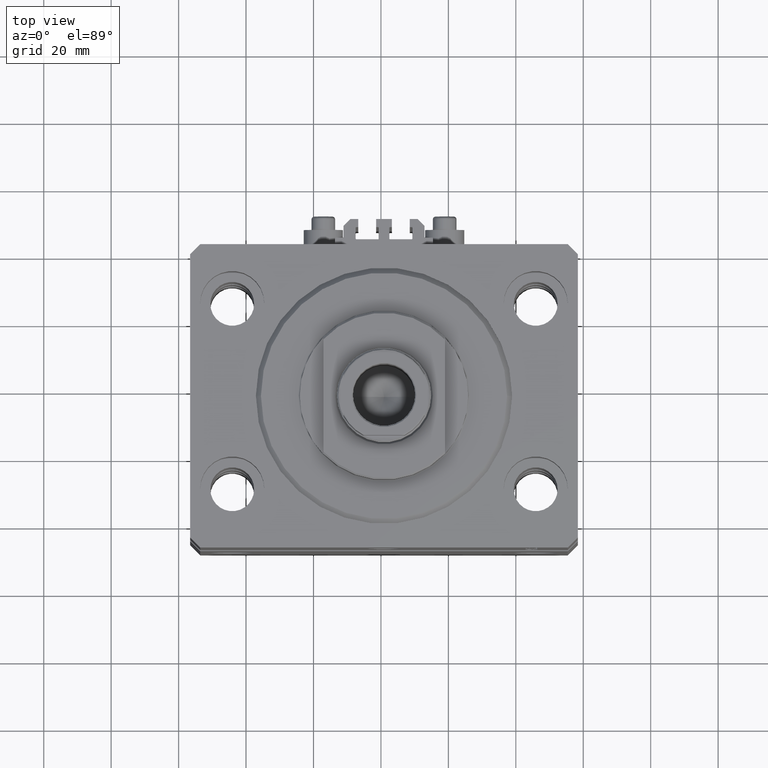
[diagram: clean part render]
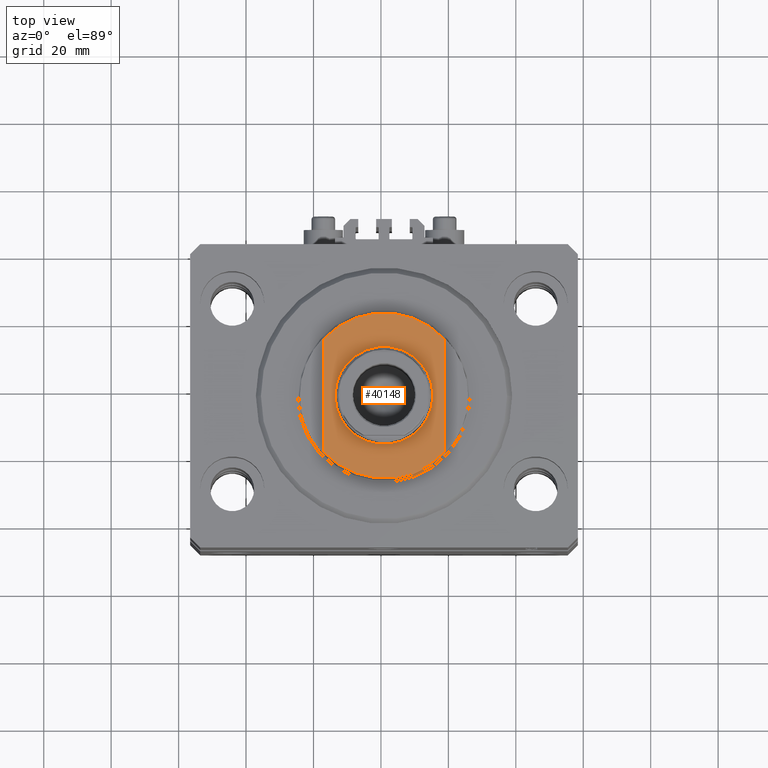
[diagram: same view with one face highlighted and labeled with its STEP entity id]
A machine part, top view. The second image highlights one B-rep face of the part: STEP entity #40148.
In plain terms, the highlighted planar face has unit normal (0, 0, 1).
Its self-contained STEP definition (entity closure, byte-faithful):
#547 = CARTESIAN_POINT ( 'NONE',  ( 18.00000000000000000, -16.62077013859462227, -7.000000000000000000 ) ) ;
#1629 = DIRECTION ( 'NONE',  ( 0.000000000000000000, 0.000000000000000000, -1.000000000000000000 ) ) ;
#2916 = VERTEX_POINT ( 'NONE', #24363 ) ;
#3593 = VERTEX_POINT ( 'NONE', #14226 ) ;
#3787 = AXIS2_PLACEMENT_3D ( 'NONE', #41002, #48214, #44981 ) ;
#5607 = VERTEX_POINT ( 'NONE', #547 ) ;
#7512 = EDGE_CURVE ( 'NONE', #27387, #2916, #31518, .T. ) ;
#7988 = ORIENTED_EDGE ( 'NONE', *, *, #24920, .T. ) ;
#8259 = EDGE_CURVE ( 'NONE', #2916, #27387, #35546, .T. ) ;
#8991 = CARTESIAN_POINT ( 'NONE',  ( -14.50000000000001243, 0.000000000000000000, -7.000000000000000000 ) ) ;
#9000 = CARTESIAN_POINT ( 'NONE',  ( -18.00000000000000000, -41.24318125460256113, -7.000000000000000000 ) ) ;
#10100 = AXIS2_PLACEMENT_3D ( 'NONE', #32409, #32652, #28923 ) ;
#10116 = ORIENTED_EDGE ( 'NONE', *, *, #46410, .T. ) ;
#11132 = FACE_OUTER_BOUND ( 'NONE', #42585, .T. ) ;
#12481 = AXIS2_PLACEMENT_3D ( 'NONE', #33244, #14333, #25063 ) ;
#12731 = CIRCLE ( 'NONE', #34192, 24.49999999999996803 ) ;
#13718 = VERTEX_POINT ( 'NONE', #37098 ) ;
#14226 = CARTESIAN_POINT ( 'NONE',  ( -18.00000000000000000, 16.62077013859462227, -7.000000000000000000 ) ) ;
#14333 = DIRECTION ( 'NONE',  ( -0.000000000000000000, -0.000000000000000000, 1.000000000000000000 ) ) ;
#16546 = CARTESIAN_POINT ( 'NONE',  ( 0.000000000000000000, 0.000000000000000000, -7.000000000000000000 ) ) ;
#18089 = EDGE_CURVE ( 'NONE', #3593, #13718, #26247, .T. ) ;
#18737 = DIRECTION ( 'NONE',  ( -1.000000000000000000, 0.000000000000000000, 0.000000000000000000 ) ) ;
#18809 = ORIENTED_EDGE ( 'NONE', *, *, #8259, .T. ) ;
#20294 = CARTESIAN_POINT ( 'NONE',  ( 18.00000000000000000, -41.24318125460256113, -7.000000000000000000 ) ) ;
#21879 = VERTEX_POINT ( 'NONE', #23597 ) ;
#22238 = CARTESIAN_POINT ( 'NONE',  ( 0.000000000000000000, 0.000000000000000000, -7.000000000000000000 ) ) ;
#23597 = CARTESIAN_POINT ( 'NONE',  ( -18.00000000000000000, -16.62077013859462227, -7.000000000000000000 ) ) ;
#23685 = DIRECTION ( 'NONE',  ( -0.000000000000000000, -1.000000000000000000, -0.000000000000000000 ) ) ;
#23781 = DIRECTION ( 'NONE',  ( 0.000000000000000000, -1.000000000000000000, -0.000000000000000000 ) ) ;
#24025 = DIRECTION ( 'NONE',  ( -1.000000000000000000, 0.000000000000000000, 0.000000000000000000 ) ) ;
#24363 = CARTESIAN_POINT ( 'NONE',  ( 14.50000000000001243, 1.775737858763663987E-15, -7.000000000000000000 ) ) ;
#24920 = EDGE_CURVE ( 'NONE', #13718, #5607, #39212, .T. ) ;
#25063 = DIRECTION ( 'NONE',  ( -1.000000000000000000, 0.000000000000000000, 0.000000000000000000 ) ) ;
#26247 = CIRCLE ( 'NONE', #29437, 24.49999999999996803 ) ;
#26833 = ORIENTED_EDGE ( 'NONE', *, *, #18089, .T. ) ;
#27237 = VECTOR ( 'NONE', #23781, 1000.000000000000000 ) ;
#27387 = VERTEX_POINT ( 'NONE', #8991 ) ;
#28923 = DIRECTION ( 'NONE',  ( -1.000000000000000000, 0.000000000000000000, 0.000000000000000000 ) ) ;
#29437 = AXIS2_PLACEMENT_3D ( 'NONE', #22238, #45375, #18737 ) ;
#30290 = FACE_BOUND ( 'NONE', #45192, .T. ) ;
#31518 = CIRCLE ( 'NONE', #10100, 14.50000000000001421 ) ;
#32409 = CARTESIAN_POINT ( 'NONE',  ( 0.000000000000000000, 0.000000000000000000, -7.000000000000000000 ) ) ;
#32652 = DIRECTION ( 'NONE',  ( -0.000000000000000000, -0.000000000000000000, 1.000000000000000000 ) ) ;
#33244 = CARTESIAN_POINT ( 'NONE',  ( 0.000000000000000000, 0.000000000000000000, -7.000000000000000000 ) ) ;
#34192 = AXIS2_PLACEMENT_3D ( 'NONE', #16546, #1629, #24025 ) ;
#35546 = CIRCLE ( 'NONE', #12481, 14.50000000000001421 ) ;
#37098 = CARTESIAN_POINT ( 'NONE',  ( 18.00000000000000000, 16.62077013859462227, -7.000000000000000000 ) ) ;
#37109 = VECTOR ( 'NONE', #23685, 1000.000000000000000 ) ;
#37544 = ORIENTED_EDGE ( 'NONE', *, *, #39639, .F. ) ;
#39212 = LINE ( 'NONE', #20294, #27237 ) ;
#39639 = EDGE_CURVE ( 'NONE', #3593, #21879, #46328, .T. ) ;
#40148 = ADVANCED_FACE ( 'NONE', ( #30290, #11132 ), #44740, .T. ) ;
#41002 = CARTESIAN_POINT ( 'NONE',  ( 0.000000000000000000, 0.000000000000000000, -7.000000000000000000 ) ) ;
#42585 = EDGE_LOOP ( 'NONE', ( #26833, #7988, #10116, #37544 ) ) ;
#44740 = PLANE ( 'NONE',  #3787 ) ;
#44981 = DIRECTION ( 'NONE',  ( -1.000000000000000000, 0.000000000000000000, -0.000000000000000000 ) ) ;
#45192 = EDGE_LOOP ( 'NONE', ( #46012, #18809 ) ) ;
#45375 = DIRECTION ( 'NONE',  ( 0.000000000000000000, 0.000000000000000000, -1.000000000000000000 ) ) ;
#46012 = ORIENTED_EDGE ( 'NONE', *, *, #7512, .T. ) ;
#46328 = LINE ( 'NONE', #9000, #37109 ) ;
#46410 = EDGE_CURVE ( 'NONE', #5607, #21879, #12731, .T. ) ;
#48214 = DIRECTION ( 'NONE',  ( 0.000000000000000000, 0.000000000000000000, -1.000000000000000000 ) ) ;